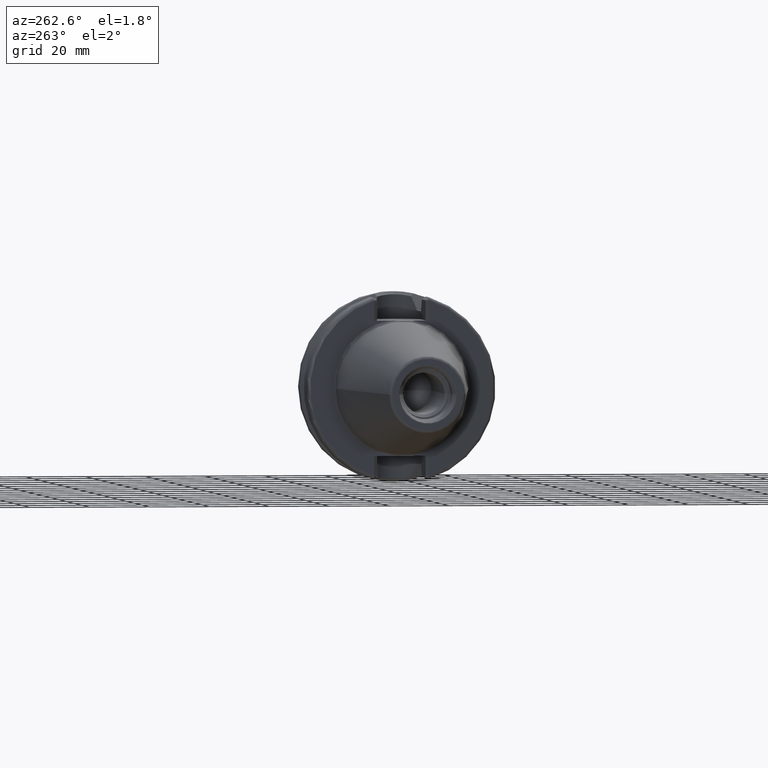
[diagram: clean part render]
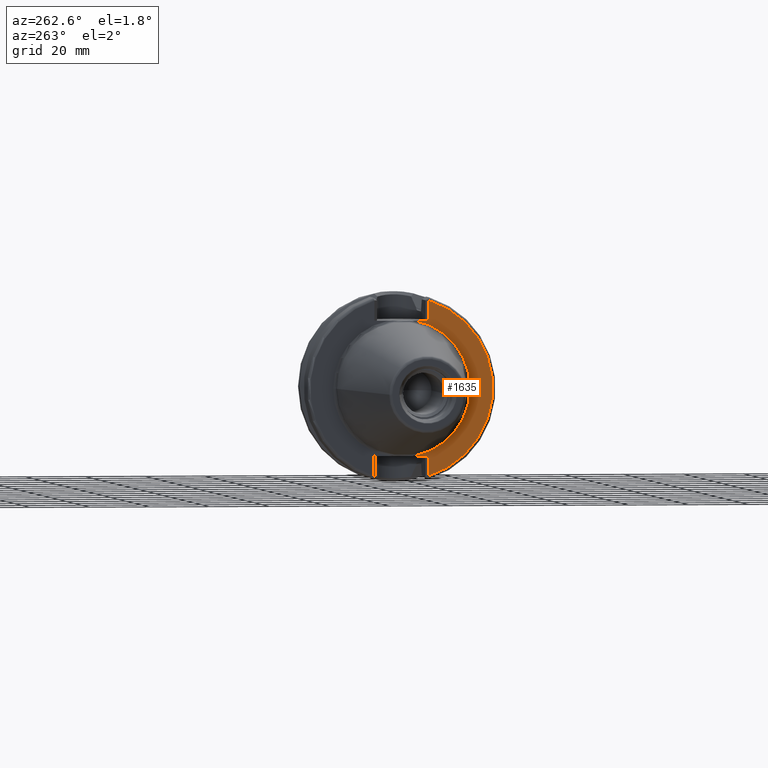
[diagram: same view with one face highlighted and labeled with its STEP entity id]
A machine part, auxiliary view. The second image highlights one B-rep face of the part: STEP entity #1635.
In plain terms, the highlighted planar face has unit normal (1, 0, 0).
Its self-contained STEP definition (entity closure, byte-faithful):
#111=CARTESIAN_POINT('',(2.E0,0.E0,0.E0));
#112=DIRECTION('',(-1.E0,0.E0,0.E0));
#113=DIRECTION('',(0.E0,-1.918678763451E-1,-9.814207650273E-1));
#114=AXIS2_PLACEMENT_3D('',#111,#112,#113);
#135=DIRECTION('',(-2.137863157207E-6,2.138092595446E-6,-9.999999999954E-1));
#136=VECTOR('',#135,6.649288203879E0);
#137=CARTESIAN_POINT('',(2.E0,-9.095E0,-2.245E1));
#138=LINE('',#137,#136);
#139=DIRECTION('',(4.462834027234E-6,-4.463945838797E-6,-9.999999999801E-1));
#140=VECTOR('',#139,6.649296399172E0);
#141=CARTESIAN_POINT('',(1.999970325294E0,-9.094970317901E0,2.909929639904E1));
#142=LINE('',#141,#140);
#597=CARTESIAN_POINT('',(1.999985784732E0,-9.094985783206E0,-2.909928820385E1));
#608=CARTESIAN_POINT('',(2.E0,0.E0,0.E0));
#609=DIRECTION('',(-1.E0,0.E0,0.E0));
#610=DIRECTION('',(0.E0,-2.983190208830E-1,-9.544662182495E-1));
#611=AXIS2_PLACEMENT_3D('',#608,#609,#610);
#684=DIRECTION('',(0.E0,1.E0,0.E0));
#685=VECTOR('',#684,4.706022328605E0);
#686=CARTESIAN_POINT('',(2.E0,-9.095E0,2.245E1));
#687=LINE('',#686,#685);
#725=CARTESIAN_POINT('',(2.E0,0.E0,0.E0));
#726=DIRECTION('',(1.E0,0.E0,0.E0));
#727=DIRECTION('',(0.E0,-1.918678763451E-1,9.814207650273E-1));
#728=AXIS2_PLACEMENT_3D('',#725,#726,#727);
#750=DIRECTION('',(0.E0,-1.E0,0.E0));
#751=VECTOR('',#750,4.706022328605E0);
#752=CARTESIAN_POINT('',(2.E0,-4.388977671395E0,-2.245E1));
#753=LINE('',#752,#751);
#1268=CARTESIAN_POINT('',(2.E0,-2.2875E1,0.E0));
#1270=VERTEX_POINT('',#1268);
#1334=CARTESIAN_POINT('',(2.E0,-4.388977671395E0,2.245E1));
#1335=VERTEX_POINT('',#1334);
#1342=CARTESIAN_POINT('',(2.E0,-4.388977671395E0,-2.245E1));
#1343=VERTEX_POINT('',#1342);
#1372=CARTESIAN_POINT('',(1.999970325294E0,-9.094970317901E0,2.909929639904E1));
#1373=CARTESIAN_POINT('',(2.E0,-9.095E0,2.245E1));
#1374=VERTEX_POINT('',#1372);
#1375=VERTEX_POINT('',#1373);
#1397=VERTEX_POINT('',#597);
#1399=CARTESIAN_POINT('',(2.E0,-9.095E0,-2.245E1));
#1400=VERTEX_POINT('',#1399);
#1615=CARTESIAN_POINT('',(2.E0,0.E0,0.E0));
#1616=DIRECTION('',(1.E0,0.E0,0.E0));
#1617=DIRECTION('',(0.E0,-1.E0,0.E0));
#1618=AXIS2_PLACEMENT_3D('',#1615,#1616,#1617);
#1619=PLANE('',#1618);
#1621=ORIENTED_EDGE('',*,*,#1620,.F.);
#1623=ORIENTED_EDGE('',*,*,#1622,.F.);
#1624=ORIENTED_EDGE('',*,*,#1587,.T.);
#1626=ORIENTED_EDGE('',*,*,#1625,.F.);
#1628=ORIENTED_EDGE('',*,*,#1627,.F.);
#1630=ORIENTED_EDGE('',*,*,#1629,.F.);
#1632=ORIENTED_EDGE('',*,*,#1631,.F.);
#1633=EDGE_LOOP('',(#1621,#1623,#1624,#1626,#1628,#1630,#1632));
#1634=FACE_OUTER_BOUND('',#1633,.F.);
#1635=ADVANCED_FACE('',(#1634),#1619,.F.);
#115=CIRCLE('',#114,2.2875E1);
#612=CIRCLE('',#611,3.04875E1);
#729=CIRCLE('',#728,2.2875E1);
#1587=EDGE_CURVE('',#1343,#1270,#115,.T.);
#1620=EDGE_CURVE('',#1400,#1397,#138,.T.);
#1622=EDGE_CURVE('',#1343,#1400,#753,.T.);
#1625=EDGE_CURVE('',#1335,#1270,#729,.T.);
#1627=EDGE_CURVE('',#1375,#1335,#687,.T.);
#1629=EDGE_CURVE('',#1374,#1375,#142,.T.);
#1631=EDGE_CURVE('',#1397,#1374,#612,.T.);